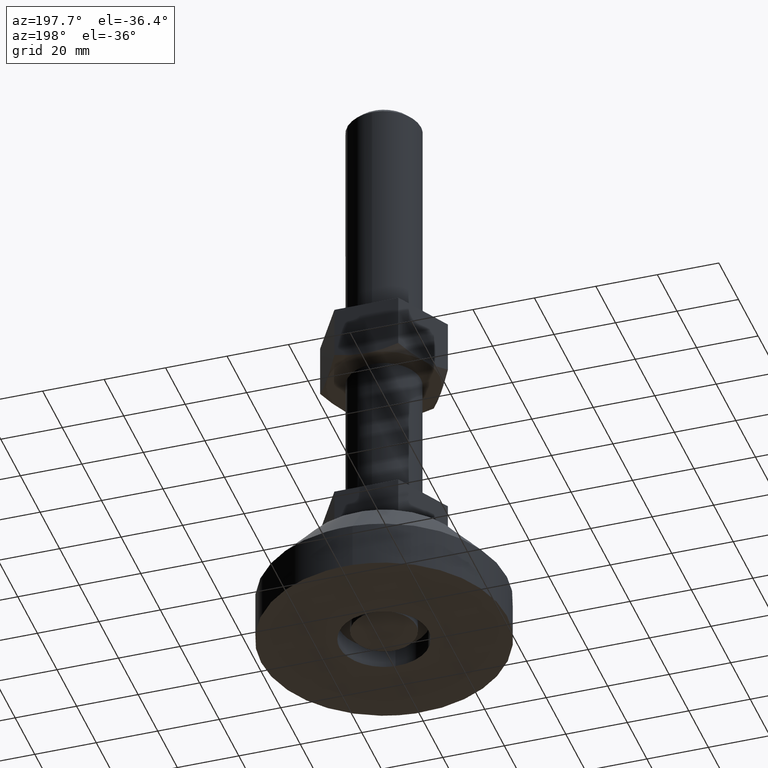
[diagram: clean part render]
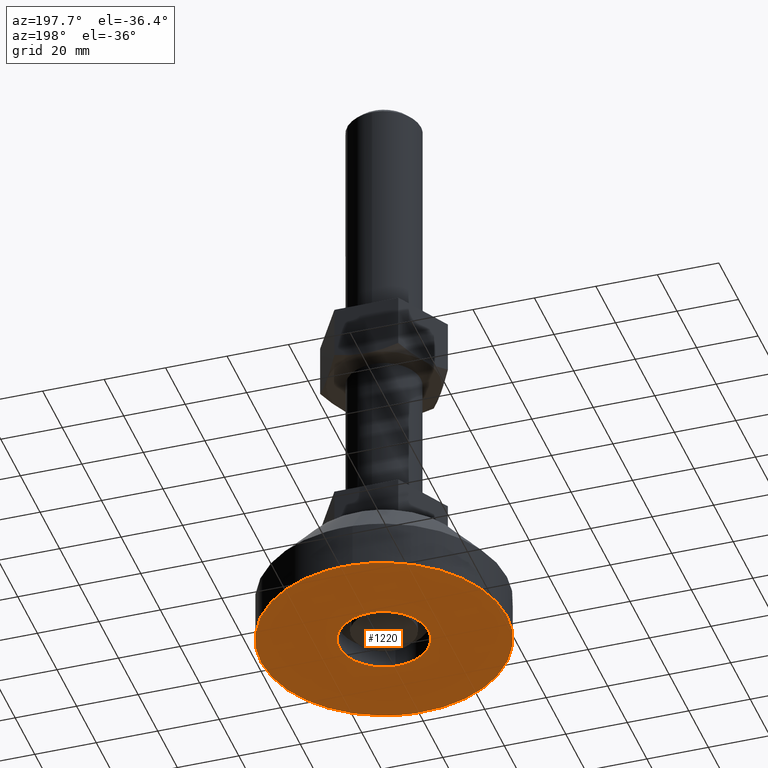
[diagram: same view with one face highlighted and labeled with its STEP entity id]
A machine part, auxiliary view. The second image highlights one B-rep face of the part: STEP entity #1220.
In plain terms, the highlighted face is a freeform B-spline surface patch.
Its self-contained STEP definition (entity closure, byte-faithful):
#1039=CARTESIAN_POINT('',(0.885203823435500,-14.472954577105959,1.113970E-013));
#1040=VERTEX_POINT('',#1039);
#1041=CARTESIAN_POINT('',(-14.499999999999771,1.136868E-013,0.0));
#1042=VERTEX_POINT('',#1041);
#1043=CARTESIAN_POINT('',(0.885203823435501,-14.472954577105954,1.110223E-013));
#1044=CARTESIAN_POINT('',(0.443015067919943,-14.499999999999888,1.110223E-013));
#1045=CARTESIAN_POINT('',(2.273737E-013,-14.499999999999890,1.110223E-013));
#1046=CARTESIAN_POINT('',(-14.499999999999774,-14.499999999999888,1.110223E-013));
#1047=CARTESIAN_POINT('',(-14.499999999999771,1.136868E-013,1.110223E-013));
#1055=(BOUNDED_CURVE()B_SPLINE_CURVE(2,(#1043,#1044,#1045,#1046,#1047),.UNSPECIFIED.,.F.,.U.)B_SPLINE_CURVE_WITH_KNOTS((3,2,3),(0.239332962239824,0.250000000000000,0.500000000000000),.UNSPECIFIED.)CURVE()GEOMETRIC_REPRESENTATION_ITEM()RATIONAL_B_SPLINE_CURVE((0.976072041668606,0.987502787900870,1.0,0.707106781186548,1.0))REPRESENTATION_ITEM(''));
#1056=EDGE_CURVE('',#1040,#1042,#1055,.T.);
#1058=CARTESIAN_POINT('',(-0.885203823435043,14.472954577106190,1.104747E-013));
#1059=VERTEX_POINT('',#1058);
#1060=CARTESIAN_POINT('',(-14.499999999999771,1.136868E-013,0.0));
#1061=CARTESIAN_POINT('',(-14.499999999999767,13.640237969962874,1.044394E-013));
#1062=CARTESIAN_POINT('',(-0.885203823435047,14.472954577106188,1.108152E-013));
#1070=(BOUNDED_CURVE()B_SPLINE_CURVE(2,(#1060,#1061,#1062),.UNSPECIFIED.,.F.,.U.)B_SPLINE_CURVE_WITH_KNOTS((3,3),(0.500000000000000,0.739332962239824),.UNSPECIFIED.)CURVE()GEOMETRIC_REPRESENTATION_ITEM()RATIONAL_B_SPLINE_CURVE((1.0,0.719603993285678,0.976072041668606))REPRESENTATION_ITEM(''));
#1071=EDGE_CURVE('',#1042,#1059,#1070,.T.);
#1106=CARTESIAN_POINT('',(14.500000000000229,1.136868E-013,1.110223E-013));
#1107=VERTEX_POINT('',#1106);
#1108=CARTESIAN_POINT('',(14.500000000000229,1.136868E-013,1.110223E-013));
#1109=CARTESIAN_POINT('',(14.500000000000224,-13.640237969962644,1.110223E-013));
#1110=CARTESIAN_POINT('',(0.885203823435501,-14.472954577105954,1.110223E-013));
#1118=(BOUNDED_CURVE()B_SPLINE_CURVE(2,(#1108,#1109,#1110),.UNSPECIFIED.,.F.,.U.)B_SPLINE_CURVE_WITH_KNOTS((3,3),(0.0,0.239332962239824),.UNSPECIFIED.)CURVE()GEOMETRIC_REPRESENTATION_ITEM()RATIONAL_B_SPLINE_CURVE((1.0,0.719603993285678,0.976072041668606))REPRESENTATION_ITEM(''));
#1119=EDGE_CURVE('',#1107,#1040,#1118,.T.);
#1125=CARTESIAN_POINT('',(-0.885203823435047,14.472954577106188,1.108152E-013));
#1126=CARTESIAN_POINT('',(-0.443015067919488,14.500000000000119,1.110223E-013));
#1127=CARTESIAN_POINT('',(2.273737E-013,14.500000000000121,1.110223E-013));
#1128=CARTESIAN_POINT('',(14.500000000000227,14.500000000000114,1.110223E-013));
#1129=CARTESIAN_POINT('',(14.500000000000229,1.136868E-013,1.110223E-013));
#1137=(BOUNDED_CURVE()B_SPLINE_CURVE(2,(#1125,#1126,#1127,#1128,#1129),.UNSPECIFIED.,.F.,.U.)B_SPLINE_CURVE_WITH_KNOTS((3,2,3),(0.739332962239824,0.750000000000000,1.0),.UNSPECIFIED.)CURVE()GEOMETRIC_REPRESENTATION_ITEM()RATIONAL_B_SPLINE_CURVE((0.976072041668606,0.987502787900870,1.0,0.707106781186548,1.0))REPRESENTATION_ITEM(''));
#1138=EDGE_CURVE('',#1059,#1107,#1137,.T.);
#1143=CARTESIAN_POINT('',(43.995999844944478,-43.995015492367600,-2.842171E-014));
#1144=CARTESIAN_POINT('',(-43.996001990711690,-43.995015492367600,-2.842171E-014));
#1145=CARTESIAN_POINT('',(43.995999844944478,43.995014061856153,-2.842171E-014));
#1146=CARTESIAN_POINT('',(-43.996001990711690,43.995014061856153,-2.842171E-014));
#1147=B_SPLINE_SURFACE_WITH_KNOTS('',1,1,((#1143,#1145),(#1144,#1146)),.UNSPECIFIED.,.F.,.F.,.U.,(2,2),(2,2),(0.0,87.992001835656168),(0.0,87.990029554223753),.UNSPECIFIED.);
#1148=CARTESIAN_POINT('',(-40.0,0.0,-5.684342E-014));
#1149=VERTEX_POINT('',#1148);
#1150=CARTESIAN_POINT('',(-2.441895194581661,39.925394773959582,-5.614953E-014));
#1151=VERTEX_POINT('',#1150);
#1152=CARTESIAN_POINT('',(-40.0,0.0,-5.684342E-014));
#1153=CARTESIAN_POINT('',(-39.999999999999176,37.628286475828965,-5.649647E-014));
#1154=CARTESIAN_POINT('',(-2.441895194581661,39.925394773959589,-5.614953E-014));
#1162=(BOUNDED_CURVE()B_SPLINE_CURVE(2,(#1152,#1153,#1154),.UNSPECIFIED.,.F.,.U.)B_SPLINE_CURVE_WITH_KNOTS((3,3),(0.0,0.239333162713308),.UNSPECIFIED.)CURVE()GEOMETRIC_REPRESENTATION_ITEM()RATIONAL_B_SPLINE_CURVE((1.0,0.719603758416382,0.976072471321820))REPRESENTATION_ITEM(''));
#1163=EDGE_CURVE('',#1149,#1151,#1162,.T.);
#1164=ORIENTED_EDGE('',*,*,#1163,.T.);
#1165=CARTESIAN_POINT('',(40.0,0.0,0.0));
#1166=VERTEX_POINT('',#1165);
#1167=CARTESIAN_POINT('',(-2.441895194581661,39.925394773959589,-5.614953E-014));
#1168=CARTESIAN_POINT('',(-1.222087273505633,39.999999999973447,-5.534264E-014));
#1169=CARTESIAN_POINT('',(1.598295E-012,39.999999999973852,-5.448490E-014));
#1170=CARTESIAN_POINT('',(40.000000000000774,39.999999999987324,-2.641013E-014));
#1171=CARTESIAN_POINT('',(40.0,0.0,0.0));
#1179=(BOUNDED_CURVE()B_SPLINE_CURVE(2,(#1167,#1168,#1169,#1170,#1171),.UNSPECIFIED.,.F.,.U.)B_SPLINE_CURVE_WITH_KNOTS((3,2,3),(0.239333162713308,0.250000000000000,0.500000000000000),.UNSPECIFIED.)CURVE()GEOMETRIC_REPRESENTATION_ITEM()RATIONAL_B_SPLINE_CURVE((0.976072471321820,0.987503022770166,1.0,0.707106781186548,1.0))REPRESENTATION_ITEM(''));
#1180=EDGE_CURVE('',#1151,#1166,#1179,.T.);
#1181=ORIENTED_EDGE('',*,*,#1180,.T.);
#1182=CARTESIAN_POINT('',(2.441895194581661,-39.925394773959582,-5.614953E-014));
#1183=VERTEX_POINT('',#1182);
#1184=CARTESIAN_POINT('',(40.0,0.0,0.0));
#1185=CARTESIAN_POINT('',(39.999999999999176,-37.628286475828965,-2.807476E-014));
#1186=CARTESIAN_POINT('',(2.441895194581661,-39.925394773959589,-5.614953E-014));
#1194=(BOUNDED_CURVE()B_SPLINE_CURVE(2,(#1184,#1185,#1186),.UNSPECIFIED.,.F.,.U.)B_SPLINE_CURVE_WITH_KNOTS((3,3),(0.500000000000000,0.739333162713308),.UNSPECIFIED.)CURVE()GEOMETRIC_REPRESENTATION_ITEM()RATIONAL_B_SPLINE_CURVE((1.0,0.719603758416382,0.976072471321820))REPRESENTATION_ITEM(''));
#1195=EDGE_CURVE('',#1166,#1183,#1194,.T.);
#1196=ORIENTED_EDGE('',*,*,#1195,.T.);
#1197=CARTESIAN_POINT('',(2.441895194581661,-39.925394773959589,-5.614953E-014));
#1198=CARTESIAN_POINT('',(1.222087273505633,-39.999999999973447,-5.615950E-014));
#1199=CARTESIAN_POINT('',(-1.598295E-012,-39.999999999973852,-5.617010E-014));
#1200=CARTESIAN_POINT('',(-40.000000000000774,-39.999999999987324,-5.651705E-014));
#1201=CARTESIAN_POINT('',(-40.0,0.0,-5.684342E-014));
#1209=(BOUNDED_CURVE()B_SPLINE_CURVE(2,(#1197,#1198,#1199,#1200,#1201),.UNSPECIFIED.,.F.,.U.)B_SPLINE_CURVE_WITH_KNOTS((3,2,3),(0.739333162713308,0.750000000000000,1.0),.UNSPECIFIED.)CURVE()GEOMETRIC_REPRESENTATION_ITEM()RATIONAL_B_SPLINE_CURVE((0.976072471321820,0.987503022770166,1.0,0.707106781186548,1.0))REPRESENTATION_ITEM(''));
#1210=EDGE_CURVE('',#1183,#1149,#1209,.T.);
#1211=ORIENTED_EDGE('',*,*,#1210,.T.);
#1212=EDGE_LOOP('',(#1164,#1181,#1196,#1211));
#1213=FACE_OUTER_BOUND('',#1212,.T.);
#1214=ORIENTED_EDGE('',*,*,#1071,.F.);
#1215=ORIENTED_EDGE('',*,*,#1056,.F.);
#1216=ORIENTED_EDGE('',*,*,#1119,.F.);
#1217=ORIENTED_EDGE('',*,*,#1138,.F.);
#1218=EDGE_LOOP('',(#1214,#1215,#1216,#1217));
#1219=FACE_BOUND('',#1218,.T.);
#1220=ADVANCED_FACE('',(#1213,#1219),#1147,.T.);